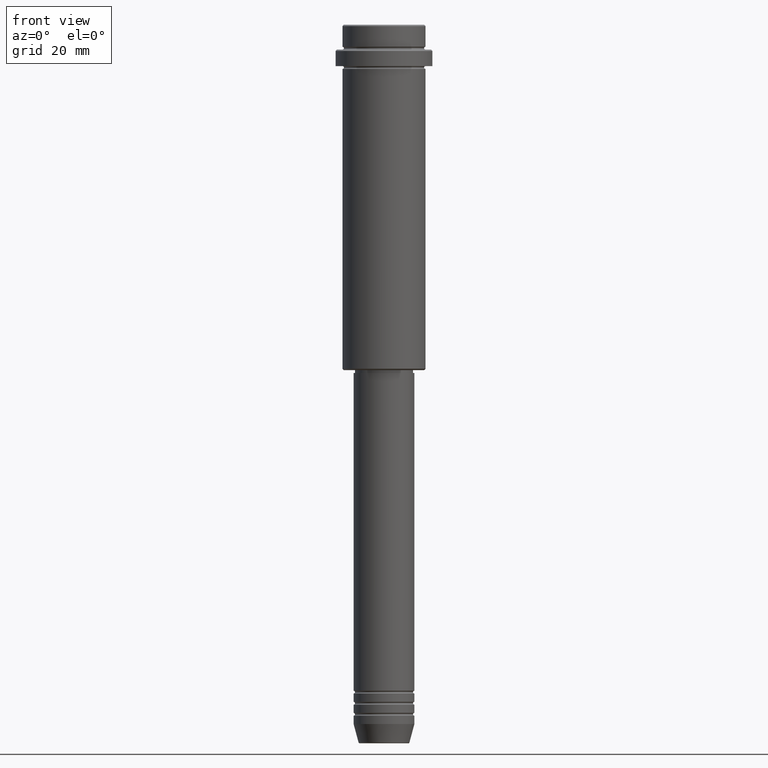
[diagram: clean part render]
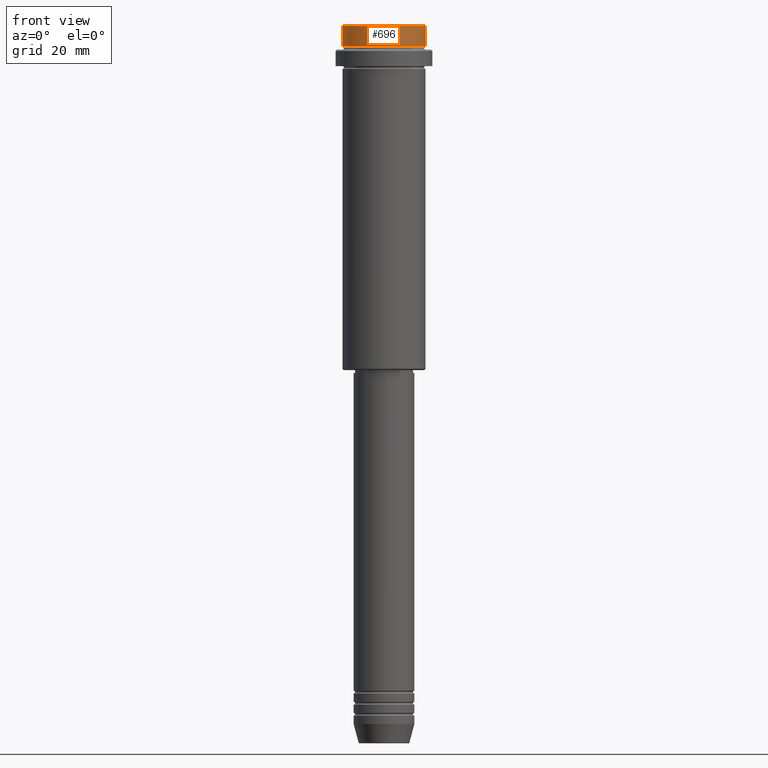
[diagram: same view with one face highlighted and labeled with its STEP entity id]
A machine part, front view. The second image highlights one B-rep face of the part: STEP entity #696.
In plain terms, the highlighted cylindrical surface (partial cylindrical patch) has radius 15 mm, axis along (-0, -0, 1).
Its self-contained STEP definition (entity closure, byte-faithful):
#11 = AXIS2_PLACEMENT_3D ( 'NONE', #175, #615, #1061 ) ;
#19 = DIRECTION ( 'NONE',  ( -0.000000000000000000, -0.000000000000000000, 1.000000000000000000 ) ) ;
#52 = CARTESIAN_POINT ( 'NONE',  ( 0.000000000000000000, 0.000000000000000000, -0.5000000000000108802 ) ) ;
#81 = EDGE_CURVE ( 'NONE', #671, #1383, #457, .T. ) ;
#175 = CARTESIAN_POINT ( 'NONE',  ( 0.000000000000000000, 0.000000000000000000, -7.999999999999998224 ) ) ;
#182 = CARTESIAN_POINT ( 'NONE',  ( -15.00000000000000000, 1.836970198721029589E-15, -0.5000000000000108802 ) ) ;
#265 = VERTEX_POINT ( 'NONE', #1391 ) ;
#314 = CARTESIAN_POINT ( 'NONE',  ( 15.00000000000000000, 0.000000000000000000, 0.000000000000000000 ) ) ;
#402 = ORIENTED_EDGE ( 'NONE', *, *, #860, .F. ) ;
#423 = ORIENTED_EDGE ( 'NONE', *, *, #1255, .T. ) ;
#444 = CARTESIAN_POINT ( 'NONE',  ( -15.00000000000000000, 1.836970198721029589E-15, 0.000000000000000000 ) ) ;
#457 = CIRCLE ( 'NONE', #1167, 15.00000000000000000 ) ;
#593 = CIRCLE ( 'NONE', #11, 15.00000000000000000 ) ;
#615 = DIRECTION ( 'NONE',  ( -0.000000000000000000, -0.000000000000000000, 1.000000000000000000 ) ) ;
#632 = DIRECTION ( 'NONE',  ( -0.000000000000000000, -0.000000000000000000, 1.000000000000000000 ) ) ;
#650 = CYLINDRICAL_SURFACE ( 'NONE', #1148, 15.00000000000000000 ) ;
#671 = VERTEX_POINT ( 'NONE', #865 ) ;
#696 = ADVANCED_FACE ( 'NONE', ( #1166 ), #650, .T. ) ;
#727 = DIRECTION ( 'NONE',  ( 0.000000000000000000, 0.000000000000000000, -1.000000000000000000 ) ) ;
#748 = CARTESIAN_POINT ( 'NONE',  ( -15.00000000000000000, 1.836970198721029589E-15, -7.999999999999998224 ) ) ;
#802 = LINE ( 'NONE', #444, #941 ) ;
#853 = ORIENTED_EDGE ( 'NONE', *, *, #81, .T. ) ;
#860 = EDGE_CURVE ( 'NONE', #1110, #1383, #802, .T. ) ;
#865 = CARTESIAN_POINT ( 'NONE',  ( 15.00000000000000000, 0.000000000000000000, -0.5000000000000108802 ) ) ;
#883 = DIRECTION ( 'NONE',  ( 1.000000000000000000, 0.000000000000000000, 0.000000000000000000 ) ) ;
#941 = VECTOR ( 'NONE', #19, 1000.000000000000000 ) ;
#969 = VECTOR ( 'NONE', #1410, 1000.000000000000000 ) ;
#975 = LINE ( 'NONE', #314, #969 ) ;
#990 = EDGE_LOOP ( 'NONE', ( #402, #1324, #423, #853 ) ) ;
#1061 = DIRECTION ( 'NONE',  ( 1.000000000000000000, 0.000000000000000000, 0.000000000000000000 ) ) ;
#1110 = VERTEX_POINT ( 'NONE', #748 ) ;
#1148 = AXIS2_PLACEMENT_3D ( 'NONE', #1414, #632, #883 ) ;
#1166 = FACE_OUTER_BOUND ( 'NONE', #990, .T. ) ;
#1167 = AXIS2_PLACEMENT_3D ( 'NONE', #52, #727, #1379 ) ;
#1217 = EDGE_CURVE ( 'NONE', #1110, #265, #593, .T. ) ;
#1255 = EDGE_CURVE ( 'NONE', #265, #671, #975, .T. ) ;
#1324 = ORIENTED_EDGE ( 'NONE', *, *, #1217, .T. ) ;
#1379 = DIRECTION ( 'NONE',  ( 1.000000000000000000, 0.000000000000000000, 0.000000000000000000 ) ) ;
#1383 = VERTEX_POINT ( 'NONE', #182 ) ;
#1391 = CARTESIAN_POINT ( 'NONE',  ( 15.00000000000000000, 0.000000000000000000, -7.999999999999998224 ) ) ;
#1410 = DIRECTION ( 'NONE',  ( -0.000000000000000000, -0.000000000000000000, 1.000000000000000000 ) ) ;
#1414 = CARTESIAN_POINT ( 'NONE',  ( 0.000000000000000000, 0.000000000000000000, 0.000000000000000000 ) ) ;